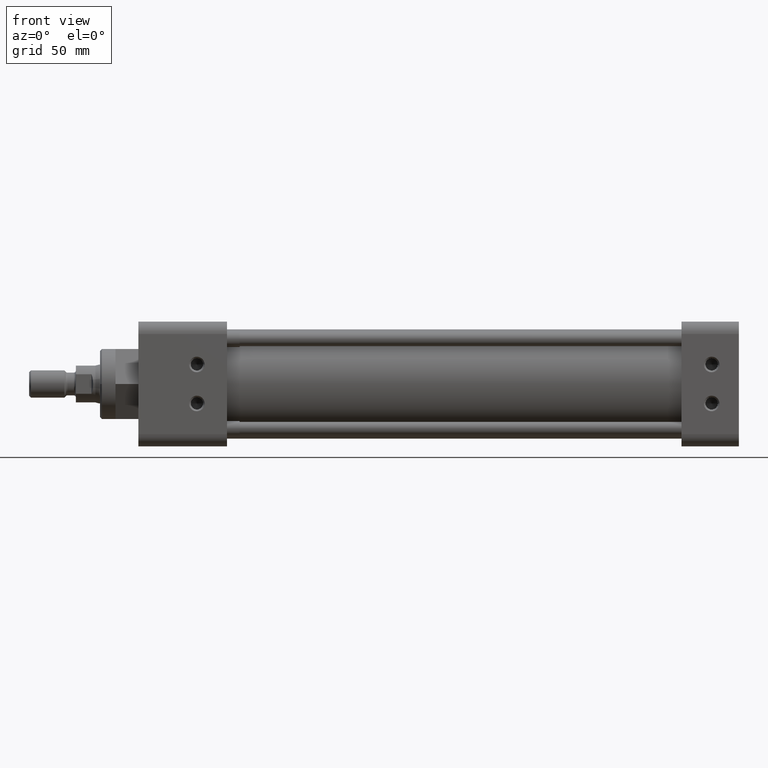
[diagram: clean part render]
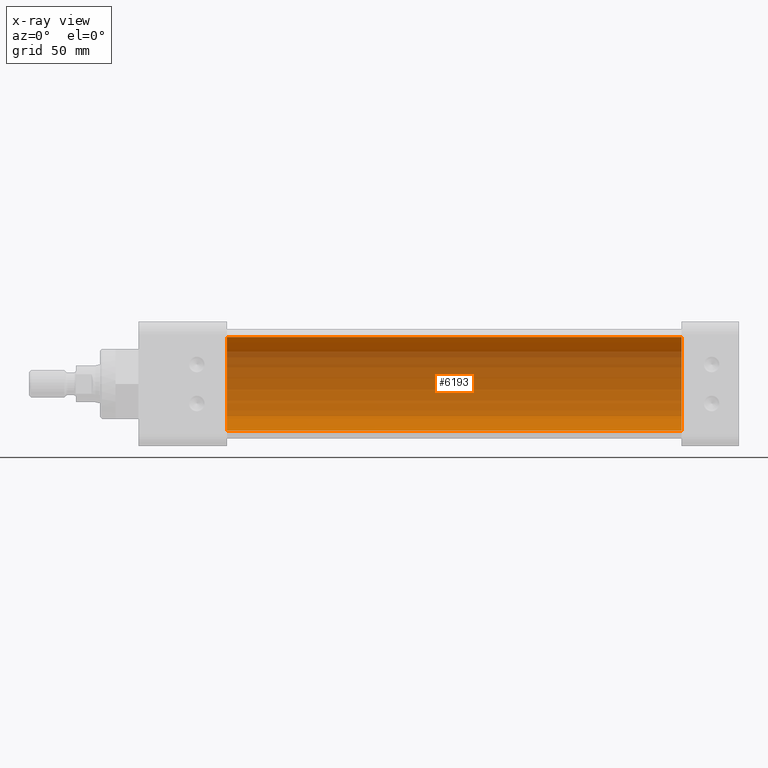
[diagram: x-ray — body ghosted, one internal face saturated and labeled with its STEP entity id]
A machine part, front view, then the same camera in x-ray: the body is ghosted and one INTERNAL B-rep face — a face not visible from any outside direction — is saturated and labeled: STEP entity #6193.
In plain terms, the highlighted cylindrical surface (partial cylindrical patch) has radius 19.05 mm, axis along (1, 0, 0).
Its self-contained STEP definition (entity closure, byte-faithful):
#71 = ORIENTED_EDGE ( 'NONE', *, *, #3359, .T. ) ;
#569 = ORIENTED_EDGE ( 'NONE', *, *, #704, .F. ) ;
#704 = EDGE_CURVE ( 'NONE', #12818, #9814, #8336, .T. ) ;
#1339 = CARTESIAN_POINT ( 'NONE',  ( 8.700999999999998700, 9.184850993605147200E-017, 0.7499999999999998900 ) ) ;
#2037 = EDGE_CURVE ( 'NONE', #5571, #11772, #13434, .T. ) ;
#2439 = DIRECTION ( 'NONE',  ( -1.000000000000000000, 0.0000000000000000000, 0.0000000000000000000 ) ) ;
#2470 = DIRECTION ( 'NONE',  ( 0.0000000000000000000, 0.0000000000000000000, -1.000000000000000000 ) ) ;
#2700 = FACE_OUTER_BOUND ( 'NONE', #12294, .T. ) ;
#3160 = CARTESIAN_POINT ( 'NONE',  ( 8.700999999999998700, 0.0000000000000000000, -0.7499999999999998900 ) ) ;
#3283 = CARTESIAN_POINT ( 'NONE',  ( 8.700999999999998700, 0.0000000000000000000, -0.7499999999999998900 ) ) ;
#3359 = EDGE_CURVE ( 'NONE', #11772, #9814, #11869, .T. ) ;
#3528 = CARTESIAN_POINT ( 'NONE',  ( 1.419999999999999900, 9.184850993605147200E-017, 0.7499999999999998900 ) ) ;
#4194 = AXIS2_PLACEMENT_3D ( 'NONE', #8120, #4718, #2470 ) ;
#4455 = DIRECTION ( 'NONE',  ( 1.000000000000000000, -0.0000000000000000000, -0.0000000000000000000 ) ) ;
#4643 = AXIS2_PLACEMENT_3D ( 'NONE', #13575, #6710, #14701 ) ;
#4718 = DIRECTION ( 'NONE',  ( 1.000000000000000000, -0.0000000000000000000, -0.0000000000000000000 ) ) ;
#5571 = VERTEX_POINT ( 'NONE', #3528 ) ;
#6193 = ADVANCED_FACE ( 'NONE', ( #2700 ), #14114, .F. ) ;
#6710 = DIRECTION ( 'NONE',  ( -1.000000000000000000, 0.0000000000000000000, 0.0000000000000000000 ) ) ;
#6739 = ORIENTED_EDGE ( 'NONE', *, *, #14667, .F. ) ;
#7093 = DIRECTION ( 'NONE',  ( 1.000000000000000000, -0.0000000000000000000, -0.0000000000000000000 ) ) ;
#7869 = VECTOR ( 'NONE', #7093, 39.37007874015748100 ) ;
#8120 = CARTESIAN_POINT ( 'NONE',  ( 8.700999999999998700, 0.0000000000000000000, 0.0000000000000000000 ) ) ;
#8225 = LINE ( 'NONE', #1339, #7869 ) ;
#8336 = CIRCLE ( 'NONE', #9807, 0.7499999999999998900 ) ;
#8809 = VECTOR ( 'NONE', #4455, 39.37007874015748100 ) ;
#8840 = ORIENTED_EDGE ( 'NONE', *, *, #2037, .T. ) ;
#9296 = CARTESIAN_POINT ( 'NONE',  ( 8.700999999999998700, 0.0000000000000000000, 0.0000000000000000000 ) ) ;
#9807 = AXIS2_PLACEMENT_3D ( 'NONE', #9296, #2439, #10452 ) ;
#9814 = VERTEX_POINT ( 'NONE', #3160 ) ;
#10452 = DIRECTION ( 'NONE',  ( 0.0000000000000000000, 0.0000000000000000000, -1.000000000000000000 ) ) ;
#11772 = VERTEX_POINT ( 'NONE', #14651 ) ;
#11869 = LINE ( 'NONE', #3283, #8809 ) ;
#12294 = EDGE_LOOP ( 'NONE', ( #6739, #8840, #71, #569 ) ) ;
#12818 = VERTEX_POINT ( 'NONE', #14278 ) ;
#13434 = CIRCLE ( 'NONE', #4643, 0.7499999999999998900 ) ;
#13575 = CARTESIAN_POINT ( 'NONE',  ( 1.419999999999999900, 0.0000000000000000000, 0.0000000000000000000 ) ) ;
#14114 = CYLINDRICAL_SURFACE ( 'NONE', #4194, 0.7499999999999998900 ) ;
#14278 = CARTESIAN_POINT ( 'NONE',  ( 8.700999999999998700, 9.184850993605147200E-017, 0.7499999999999998900 ) ) ;
#14651 = CARTESIAN_POINT ( 'NONE',  ( 1.419999999999999900, 0.0000000000000000000, -0.7499999999999998900 ) ) ;
#14667 = EDGE_CURVE ( 'NONE', #5571, #12818, #8225, .T. ) ;
#14701 = DIRECTION ( 'NONE',  ( 0.0000000000000000000, 0.0000000000000000000, -1.000000000000000000 ) ) ;